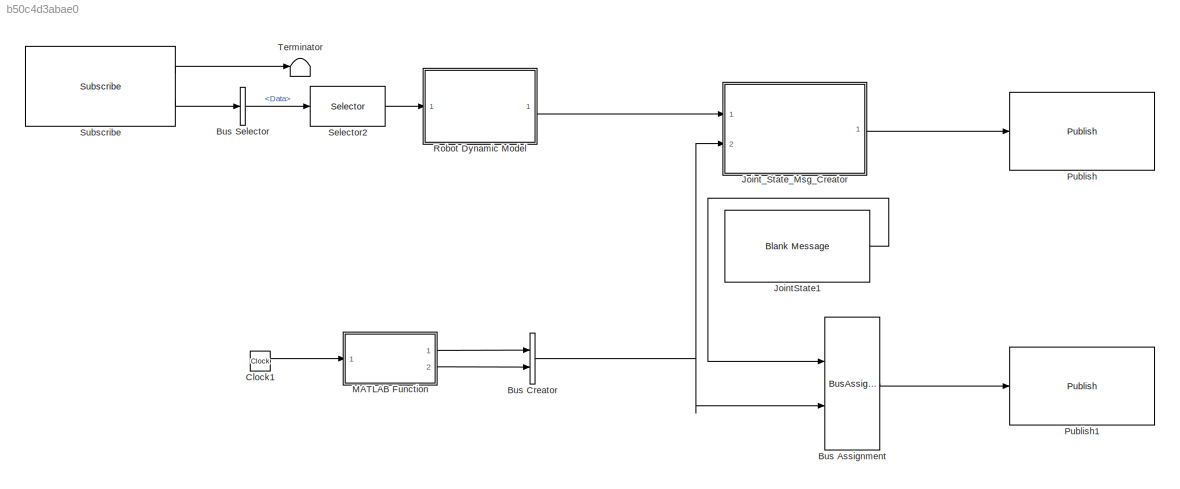
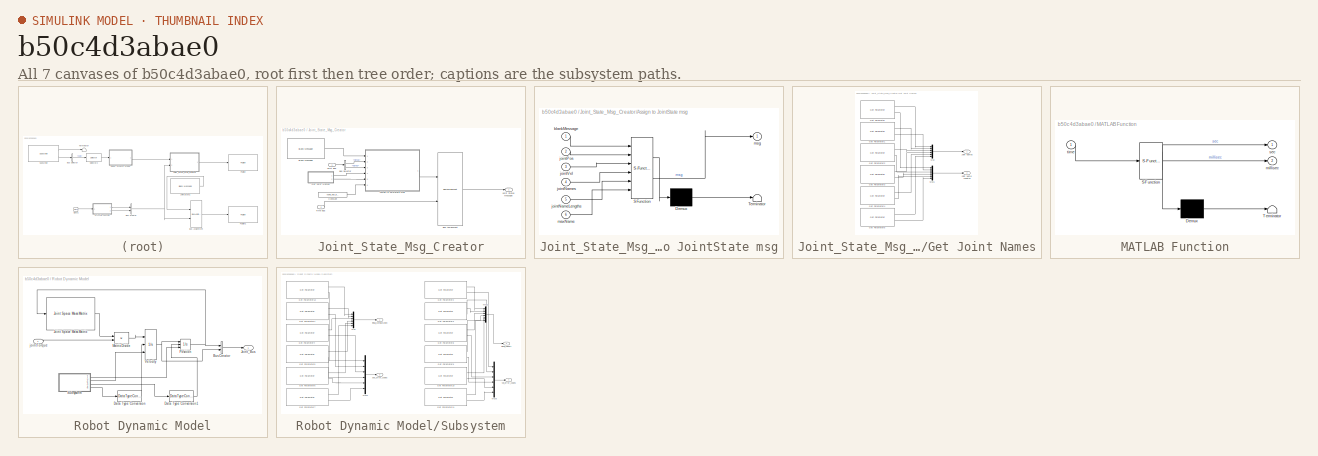
[diagram: thumbnail index - all 7 canvases of the model, root first then tree order]
MODEL slx_b50c4d3abae0
KIND model
CONFIG AbsTol = auto
CONFIG EnableMultiTasking = off
CONFIG FixedStep = 0.01
CONFIG MaxStep = auto
CONFIG MinStep = auto
CONFIG RelTol = 1e-3
CONFIG SampleTimeConstraint = Unconstrained
CONFIG Solver = ode3
CONFIG SolverName = ode3
CONFIG StartTime = 0.0
CONFIG StopTime = inf
BLOCK [BusAssignment] Bus Assignment
  AssignedSignals = Clock_
  Ports = [2, 1]
BLOCK [BusCreator] Bus Creator
  DisplayOption = bar
  InheritFromInputs = on
  Inputs = 2
  Ports = [2, 1]
BLOCK [BusSelector] Bus Selector
  OutputSignals = Data
  Ports = [1, 1]
BLOCK [Clock] Clock1
BLOCK [Reference] JointState1  REF=robotlib/Blank Message
  Ports = [0, 1]
  SourceBlock = robotlib/Blank Message
  SourceProductBaseCode = RR
  SourceType = ROS Blank Message
BLOCK [SubSystem] Joint_State_Msg_Creator
  Ports = [2, 1]
  RequestExecContextInheritance = off
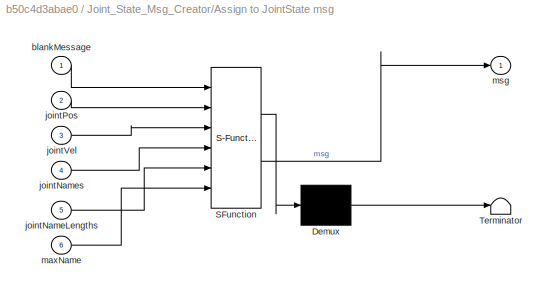
BLOCK [SubSystem] Joint_State_Msg_Creator/Assign to JointState msg
  ErrorFcn = Stateflow.Translate.translate
  PermitHierarchicalResolution = ExplicitOnly
  Ports = [6, 1]
  RequestExecContextInheritance = off
  SFBlockType = MATLAB Function
  TreatAsAtomicUnit = on
BLOCK [Demux] Joint_State_Msg_Creator/Assign to JointState msg/ Demux 
  Outputs = 1
  Ports = [1, 1]
BLOCK [S-Function] Joint_State_Msg_Creator/Assign to JointState msg/ SFunction 
  EnableBusSupport = on
  FunctionName = sf_sfun
  PortCounts = [6 2]
  Ports = [6, 2]
  SFcnIsStateOwnerBlock = off
  SFunctionDeploymentMode = off
  Tag = Stateflow S-Function 2
BLOCK [Terminator] Joint_State_Msg_Creator/Assign to JointState msg/ Terminator 
BLOCK [Inport] Joint_State_Msg_Creator/Assign to JointState msg/blankMessage
BLOCK [Inport] Joint_State_Msg_Creator/Assign to JointState msg/jointNameLengths
  Port = 5
BLOCK [Inport] Joint_State_Msg_Creator/Assign to JointState msg/jointNames
  Port = 4
BLOCK [Inport] Joint_State_Msg_Creator/Assign to JointState msg/jointPos
  Port = 2
BLOCK [Inport] Joint_State_Msg_Creator/Assign to JointState msg/jointVel
  Port = 3
BLOCK [Inport] Joint_State_Msg_Creator/Assign to JointState msg/maxName
  Port = 6
BLOCK [Outport] Joint_State_Msg_Creator/Assign to JointState msg/msg
  VectorParamsAs1DForOutWhenUnconnected = off
BLOCK [Reference] Joint_State_Msg_Creator/Blank Message  REF=robotlib/Blank Message
  Ports = [0, 1]
  SourceBlock = robotlib/Blank Message
  SourceProductBaseCode = RR
  SourceType = ROS Blank Message
BLOCK [BusAssignment] Joint_State_Msg_Creator/Bus Assignment
  AssignedSignals = Header.Stamp
  Ports = [2, 1]
BLOCK [BusSelector] Joint_State_Msg_Creator/Bus Selector
  OutputSignals = signal1,signal2
  Ports = [1, 2]
BLOCK [Constant] Joint_State_Msg_Creator/Constant
  Value = name_max_length
BLOCK [SubSystem] Joint_State_Msg_Creator/Get Joint Names
  Ports = [0, 2]
  RequestExecContextInheritance = off
BLOCK [Reference] Joint_State_Msg_Creator/Get Joint Names/Get Parameter  REF=robotlib/Get Parameter
  Ports = [0, 2]
  SourceBlock = robotlib/Get Parameter
  SourceProductBaseCode = RR
  SourceType = ROS Get Parameter
BLOCK [Reference] Joint_State_Msg_Creator/Get Joint Names/Get Parameter1  REF=robotlib/Get Parameter
  Ports = [0, 2]
  SourceBlock = robotlib/Get Parameter
  SourceProductBaseCode = RR
  SourceType = ROS Get Parameter
BLOCK [Reference] Joint_State_Msg_Creator/Get Joint Names/Get Parameter2  REF=robotlib/Get Parameter
  Ports = [0, 2]
  SourceBlock = robotlib/Get Parameter
  SourceProductBaseCode = RR
  SourceType = ROS Get Parameter
BLOCK [Reference] Joint_State_Msg_Creator/Get Joint Names/Get Parameter3  REF=robotlib/Get Parameter
  Ports = [0, 2]
  SourceBlock = robotlib/Get Parameter
  SourceProductBaseCode = RR
  SourceType = ROS Get Parameter
BLOCK [Reference] Joint_State_Msg_Creator/Get Joint Names/Get Parameter4  REF=robotlib/Get Parameter
  Ports = [0, 2]
  SourceBlock = robotlib/Get Parameter
  SourceProductBaseCode = RR
  SourceType = ROS Get Parameter
BLOCK [Reference] Joint_State_Msg_Creator/Get Joint Names/Get Parameter5  REF=robotlib/Get Parameter
  Ports = [0, 2]
  SourceBlock = robotlib/Get Parameter
  SourceProductBaseCode = RR
  SourceType = ROS Get Parameter
BLOCK [Outport] Joint_State_Msg_Creator/Get Joint Names/Joint Name Lengths
  Port = 2
BLOCK [Outport] Joint_State_Msg_Creator/Get Joint Names/Joint Names
BLOCK [Mux] Joint_State_Msg_Creator/Get Joint Names/Mux
  DisplayOption = bar
  Inputs = 6
  Ports = [6, 1]
BLOCK [Mux] Joint_State_Msg_Creator/Get Joint Names/Mux1
  DisplayOption = bar
  Inputs = 6
  Ports = [6, 1]
BLOCK [Inport] Joint_State_Msg_Creator/Joint Bus
BLOCK [Outport] Joint_State_Msg_Creator/Joint States Message
BLOCK [Inport] Joint_State_Msg_Creator/Time Bus
  Port = 2
BLOCK [SubSystem] MATLAB Function
  ErrorFcn = Stateflow.Translate.translate
  PermitHierarchicalResolution = ExplicitOnly
  Ports = [1, 2]
  RequestExecContextInheritance = off
  SFBlockType = MATLAB Function
  TreatAsAtomicUnit = on
BLOCK [Demux] MATLAB Function/ Demux 
  Outputs = 1
  Ports = [1, 1]
BLOCK [S-Function] MATLAB Function/ SFunction 
  EnableBusSupport = on
  FunctionName = sf_sfun
  PortCounts = [1 3]
  Ports = [1, 3]
  SFcnIsStateOwnerBlock = off
  SFunctionDeploymentMode = off
  Tag = Stateflow S-Function 1
BLOCK [Terminator] MATLAB Function/ Terminator 
BLOCK [Outport] MATLAB Function/millisec
  Port = 2
BLOCK [Outport] MATLAB Function/sec
BLOCK [Inport] MATLAB Function/time
BLOCK [Reference] Publish  REF=robotlib/Publish
  Ports = [1]
  SourceBlock = robotlib/Publish
  SourceProductBaseCode = RR
  SourceType = ROS Publish
BLOCK [Reference] Publish1  REF=robotlib/Publish
  Ports = [1]
  SourceBlock = robotlib/Publish
  SourceProductBaseCode = RR
  SourceType = ROS Publish
BLOCK [SubSystem] Robot Dynamic Model
  Ports = [1, 1]
  RequestExecContextInheritance = off
BLOCK [BusCreator] Robot Dynamic Model/Bus Creator
  DisplayOption = bar
  InheritFromInputs = on
  Inputs = 2
  Ports = [2, 1]
BLOCK [DataTypeConversion] Robot Dynamic Model/Data Type Conversion
  OutDataTypeStr = double
  RndMeth = Floor
  SaturateOnIntegerOverflow = off
BLOCK [DataTypeConversion] Robot Dynamic Model/Data Type Conversion1
  OutDataTypeStr = double
  RndMeth = Floor
  SaturateOnIntegerOverflow = off
BLOCK [Reference] Robot Dynamic Model/Joint Space Mass Matrix  REF=robotmaniplib/Joint Space Mass Matrix
  Ports = [1, 1]
  SourceBlock = robotmaniplib/Joint Space Mass Matrix
  SourceProductBaseCode = RO
  SourceType = Joint Space Mass Matrix
BLOCK [Outport] Robot Dynamic Model/Joint_Bus
BLOCK [Product] Robot Dynamic Model/Matrix Divide
  Inputs = /*
  Multiplication = Matrix(*)
  Ports = [2, 1]
BLOCK [Integrator] Robot Dynamic Model/Position
  ExternalReset = falling
  InitialConditionSource = external
  Ports = [3, 1]
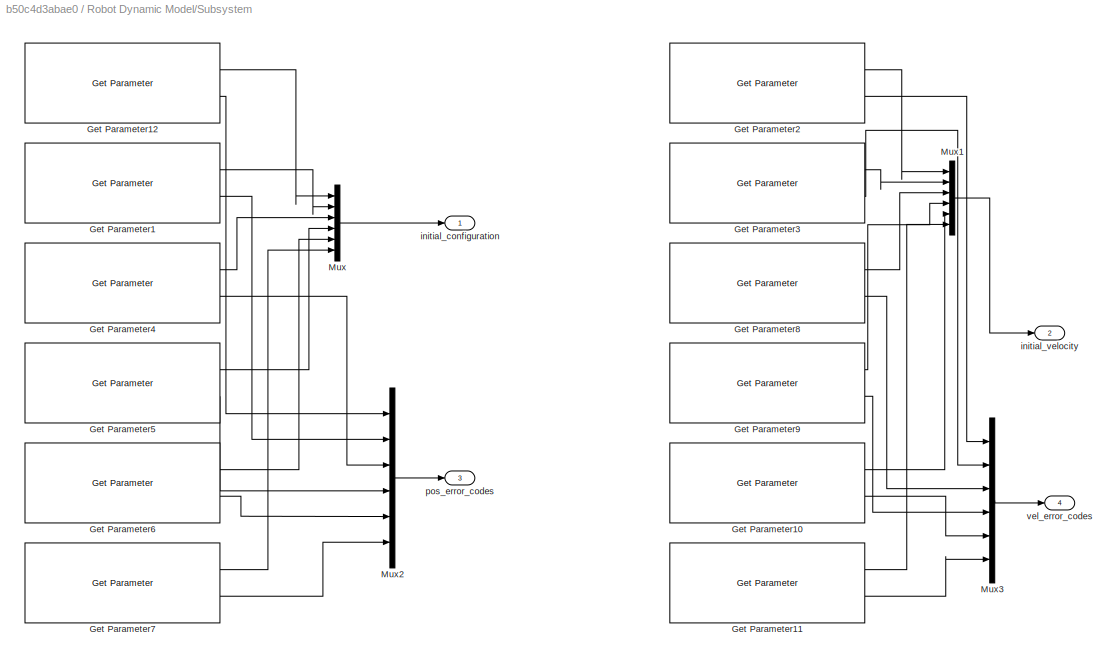
BLOCK [SubSystem] Robot Dynamic Model/Subsystem
  Ports = [0, 4]
  RequestExecContextInheritance = off
BLOCK [Reference] Robot Dynamic Model/Subsystem/Get Parameter1  REF=robotlib/Get Parameter
  Ports = [0, 2]
  SourceBlock = robotlib/Get Parameter
  SourceProductBaseCode = RR
  SourceType = ROS Get Parameter
BLOCK [Reference] Robot Dynamic Model/Subsystem/Get Parameter10  REF=robotlib/Get Parameter
  Ports = [0, 2]
  SourceBlock = robotlib/Get Parameter
  SourceProductBaseCode = RR
  SourceType = ROS Get Parameter
BLOCK [Reference] Robot Dynamic Model/Subsystem/Get Parameter11  REF=robotlib/Get Parameter
  Ports = [0, 2]
  SourceBlock = robotlib/Get Parameter
  SourceProductBaseCode = RR
  SourceType = ROS Get Parameter
BLOCK [Reference] Robot Dynamic Model/Subsystem/Get Parameter12  REF=robotlib/Get Parameter
  Ports = [0, 2]
  SourceBlock = robotlib/Get Parameter
  SourceProductBaseCode = RR
  SourceType = ROS Get Parameter
BLOCK [Reference] Robot Dynamic Model/Subsystem/Get Parameter2  REF=robotlib/Get Parameter
  Ports = [0, 2]
  SourceBlock = robotlib/Get Parameter
  SourceProductBaseCode = RR
  SourceType = ROS Get Parameter
BLOCK [Reference] Robot Dynamic Model/Subsystem/Get Parameter3  REF=robotlib/Get Parameter
  Ports = [0, 2]
  SourceBlock = robotlib/Get Parameter
  SourceProductBaseCode = RR
  SourceType = ROS Get Parameter
BLOCK [Reference] Robot Dynamic Model/Subsystem/Get Parameter4  REF=robotlib/Get Parameter
  Ports = [0, 2]
  SourceBlock = robotlib/Get Parameter
  SourceProductBaseCode = RR
  SourceType = ROS Get Parameter
BLOCK [Reference] Robot Dynamic Model/Subsystem/Get Parameter5  REF=robotlib/Get Parameter
  Ports = [0, 2]
  SourceBlock = robotlib/Get Parameter
  SourceProductBaseCode = RR
  SourceType = ROS Get Parameter
BLOCK [Reference] Robot Dynamic Model/Subsystem/Get Parameter6  REF=robotlib/Get Parameter
  Ports = [0, 2]
  SourceBlock = robotlib/Get Parameter
  SourceProductBaseCode = RR
  SourceType = ROS Get Parameter
BLOCK [Reference] Robot Dynamic Model/Subsystem/Get Parameter7  REF=robotlib/Get Parameter
  Ports = [0, 2]
  SourceBlock = robotlib/Get Parameter
  SourceProductBaseCode = RR
  SourceType = ROS Get Parameter
BLOCK [Reference] Robot Dynamic Model/Subsystem/Get Parameter8  REF=robotlib/Get Parameter
  Ports = [0, 2]
  SourceBlock = robotlib/Get Parameter
  SourceProductBaseCode = RR
  SourceType = ROS Get Parameter
BLOCK [Reference] Robot Dynamic Model/Subsystem/Get Parameter9  REF=robotlib/Get Parameter
  Ports = [0, 2]
  SourceBlock = robotlib/Get Parameter
  SourceProductBaseCode = RR
  SourceType = ROS Get Parameter
BLOCK [Mux] Robot Dynamic Model/Subsystem/Mux
  DisplayOption = bar
  Inputs = 6
  Ports = [6, 1]
BLOCK [Mux] Robot Dynamic Model/Subsystem/Mux1
  DisplayOption = bar
  Inputs = 6
  Ports = [6, 1]
BLOCK [Mux] Robot Dynamic Model/Subsystem/Mux2
  DisplayOption = bar
  Inputs = 6
  Ports = [6, 1]
BLOCK [Mux] Robot Dynamic Model/Subsystem/Mux3
  DisplayOption = bar
  Inputs = 6
  Ports = [6, 1]
BLOCK [Outport] Robot Dynamic Model/Subsystem/initial_configuration
BLOCK [Outport] Robot Dynamic Model/Subsystem/initial_velocity
  Port = 2
BLOCK [Outport] Robot Dynamic Model/Subsystem/pos_error_codes
  Port = 3
BLOCK [Outport] Robot Dynamic Model/Subsystem/vel_error_codes
  Port = 4
BLOCK [Integrator] Robot Dynamic Model/Velocity
  ExternalReset = falling
  InitialConditionSource = external
  Ports = [3, 1]
BLOCK [Inport] Robot Dynamic Model/jointTorque
BLOCK [Selector] Selector2
  IndexOptions = Starting index (dialog)
  Indices = 1
  OutputSizes = 6
  Ports = [1, 1]
BLOCK [Reference] Subscribe  REF=robotlib/Subscribe
  Ports = [0, 2]
  SourceBlock = robotlib/Subscribe
  SourceProductBaseCode = RR
  SourceType = ROS Subscribe
BLOCK [Terminator] Terminator
LINE Bus Assignment:1 -> Publish1:1
NET Bus Creator:1 -> Bus Assignment:2, Joint_State_Msg_Creator:2
LINE Bus Selector:1 -> Selector2:1
LINE Clock1:1 -> MATLAB Function:1
LINE JointState1:1 -> Bus Assignment:1
LINE Joint_State_Msg_Creator/Assign to JointState msg:1 -> Joint_State_Msg_Creator/Bus Assignment:1
LINE Joint_State_Msg_Creator/Blank Message:1 -> Joint_State_Msg_Creator/Assign to JointState msg:1
LINE Joint_State_Msg_Creator/Bus Assignment:1 -> Joint_State_Msg_Creator/Joint States Message:1
LINE Joint_State_Msg_Creator/Bus Selector:1 -> Joint_State_Msg_Creator/Assign to JointState msg:2
LINE Joint_State_Msg_Creator/Bus Selector:2 -> Joint_State_Msg_Creator/Assign to JointState msg:3
LINE Joint_State_Msg_Creator/Constant:1 -> Joint_State_Msg_Creator/Assign to JointState msg:6
LINE Joint_State_Msg_Creator/Get Joint Names/Get Parameter1:1 -> Joint_State_Msg_Creator/Get Joint Names/Mux:2
LINE Joint_State_Msg_Creator/Get Joint Names/Get Parameter1:2 -> Joint_State_Msg_Creator/Get Joint Names/Mux1:2
LINE Joint_State_Msg_Creator/Get Joint Names/Get Parameter2:1 -> Joint_State_Msg_Creator/Get Joint Names/Mux:3
LINE Joint_State_Msg_Creator/Get Joint Names/Get Parameter2:2 -> Joint_State_Msg_Creator/Get Joint Names/Mux1:3
LINE Joint_State_Msg_Creator/Get Joint Names/Get Parameter3:1 -> Joint_State_Msg_Creator/Get Joint Names/Mux:4
LINE Joint_State_Msg_Creator/Get Joint Names/Get Parameter3:2 -> Joint_State_Msg_Creator/Get Joint Names/Mux1:4
LINE Joint_State_Msg_Creator/Get Joint Names/Get Parameter4:1 -> Joint_State_Msg_Creator/Get Joint Names/Mux:5
LINE Joint_State_Msg_Creator/Get Joint Names/Get Parameter4:2 -> Joint_State_Msg_Creator/Get Joint Names/Mux1:5
LINE Joint_State_Msg_Creator/Get Joint Names/Get Parameter5:1 -> Joint_State_Msg_Creator/Get Joint Names/Mux:6
LINE Joint_State_Msg_Creator/Get Joint Names/Get Parameter5:2 -> Joint_State_Msg_Creator/Get Joint Names/Mux1:6
LINE Joint_State_Msg_Creator/Get Joint Names/Get Parameter:1 -> Joint_State_Msg_Creator/Get Joint Names/Mux:1
LINE Joint_State_Msg_Creator/Get Joint Names/Get Parameter:2 -> Joint_State_Msg_Creator/Get Joint Names/Mux1:1
LINE Joint_State_Msg_Creator/Get Joint Names/Mux1:1 -> Joint_State_Msg_Creator/Get Joint Names/Joint Name Lengths:1
LINE Joint_State_Msg_Creator/Get Joint Names/Mux:1 -> Joint_State_Msg_Creator/Get Joint Names/Joint Names:1
LINE Joint_State_Msg_Creator/Get Joint Names:1 -> Joint_State_Msg_Creator/Assign to JointState msg:4
LINE Joint_State_Msg_Creator/Get Joint Names:2 -> Joint_State_Msg_Creator/Assign to JointState msg:5
LINE Joint_State_Msg_Creator/Joint Bus:1 -> Joint_State_Msg_Creator/Bus Selector:1
LINE Joint_State_Msg_Creator/Time Bus:1 -> Joint_State_Msg_Creator/Bus Assignment:2
LINE Joint_State_Msg_Creator:1 -> Publish:1
LINE MATLAB Function:1 -> Bus Creator:1
LINE MATLAB Function:2 -> Bus Creator:2
LINE Robot Dynamic Model/Bus Creator:1 -> Robot Dynamic Model/Joint_Bus:1
LINE Robot Dynamic Model/Data Type Conversion1:1 -> Robot Dynamic Model/Position:2
LINE Robot Dynamic Model/Data Type Conversion:1 -> Robot Dynamic Model/Velocity:2
LINE Robot Dynamic Model/Joint Space Mass Matrix:1 -> Robot Dynamic Model/Matrix Divide:1
LINE Robot Dynamic Model/Matrix Divide:1 -> Robot Dynamic Model/Velocity:1
NET Robot Dynamic Model/Position:1 -> Robot Dynamic Model/Bus Creator:1, Robot Dynamic Model/Joint Space Mass Matrix:1
LINE Robot Dynamic Model/Subsystem/Get Parameter10:1 -> Robot Dynamic Model/Subsystem/Mux1:5
LINE Robot Dynamic Model/Subsystem/Get Parameter10:2 -> Robot Dynamic Model/Subsystem/Mux3:5
LINE Robot Dynamic Model/Subsystem/Get Parameter11:1 -> Robot Dynamic Model/Subsystem/Mux1:6
LINE Robot Dynamic Model/Subsystem/Get Parameter11:2 -> Robot Dynamic Model/Subsystem/Mux3:6
LINE Robot Dynamic Model/Subsystem/Get Parameter12:1 -> Robot Dynamic Model/Subsystem/Mux:1
LINE Robot Dynamic Model/Subsystem/Get Parameter12:2 -> Robot Dynamic Model/Subsystem/Mux2:1
LINE Robot Dynamic Model/Subsystem/Get Parameter1:1 -> Robot Dynamic Model/Subsystem/Mux:2
LINE Robot Dynamic Model/Subsystem/Get Parameter1:2 -> Robot Dynamic Model/Subsystem/Mux2:2
LINE Robot Dynamic Model/Subsystem/Get Parameter2:1 -> Robot Dynamic Model/Subsystem/Mux1:1
LINE Robot Dynamic Model/Subsystem/Get Parameter2:2 -> Robot Dynamic Model/Subsystem/Mux3:1
LINE Robot Dynamic Model/Subsystem/Get Parameter3:1 -> Robot Dynamic Model/Subsystem/Mux1:2
LINE Robot Dynamic Model/Subsystem/Get Parameter3:2 -> Robot Dynamic Model/Subsystem/Mux3:2
LINE Robot Dynamic Model/Subsystem/Get Parameter4:1 -> Robot Dynamic Model/Subsystem/Mux:3
LINE Robot Dynamic Model/Subsystem/Get Parameter4:2 -> Robot Dynamic Model/Subsystem/Mux2:3
LINE Robot Dynamic Model/Subsystem/Get Parameter5:1 -> Robot Dynamic Model/Subsystem/Mux:4
LINE Robot Dynamic Model/Subsystem/Get Parameter5:2 -> Robot Dynamic Model/Subsystem/Mux2:4
LINE Robot Dynamic Model/Subsystem/Get Parameter6:1 -> Robot Dynamic Model/Subsystem/Mux:5
LINE Robot Dynamic Model/Subsystem/Get Parameter6:2 -> Robot Dynamic Model/Subsystem/Mux2:5
LINE Robot Dynamic Model/Subsystem/Get Parameter7:1 -> Robot Dynamic Model/Subsystem/Mux:6
LINE Robot Dynamic Model/Subsystem/Get Parameter7:2 -> Robot Dynamic Model/Subsystem/Mux2:6
LINE Robot Dynamic Model/Subsystem/Get Parameter8:1 -> Robot Dynamic Model/Subsystem/Mux1:3
LINE Robot Dynamic Model/Subsystem/Get Parameter8:2 -> Robot Dynamic Model/Subsystem/Mux3:3
LINE Robot Dynamic Model/Subsystem/Get Parameter9:1 -> Robot Dynamic Model/Subsystem/Mux1:4
LINE Robot Dynamic Model/Subsystem/Get Parameter9:2 -> Robot Dynamic Model/Subsystem/Mux3:4
LINE Robot Dynamic Model/Subsystem/Mux1:1 -> Robot Dynamic Model/Subsystem/initial_velocity:1
LINE Robot Dynamic Model/Subsystem/Mux2:1 -> Robot Dynamic Model/Subsystem/pos_error_codes:1
LINE Robot Dynamic Model/Subsystem/Mux3:1 -> Robot Dynamic Model/Subsystem/vel_error_codes:1
LINE Robot Dynamic Model/Subsystem/Mux:1 -> Robot Dynamic Model/Subsystem/initial_configuration:1
LINE Robot Dynamic Model/Subsystem:1 -> Robot Dynamic Model/Position:3
LINE Robot Dynamic Model/Subsystem:2 -> Robot Dynamic Model/Velocity:3
LINE Robot Dynamic Model/Subsystem:3 -> Robot Dynamic Model/Data Type Conversion1:1
LINE Robot Dynamic Model/Subsystem:4 -> Robot Dynamic Model/Data Type Conversion:1
NET Robot Dynamic Model/Velocity:1 -> Robot Dynamic Model/Bus Creator:2, Robot Dynamic Model/Position:1
LINE Robot Dynamic Model/jointTorque:1 -> Robot Dynamic Model/Matrix Divide:2
LINE Robot Dynamic Model:1 -> Joint_State_Msg_Creator:1
LINE Selector2:1 -> Robot Dynamic Model:1
LINE Subscribe:1 -> Terminator:1
LINE Subscribe:2 -> Bus Selector:1
note: NET lines group one-source signal fan-out (src -> all destinations, sorted); 1:1 wires keep LINE
CHART MATLAB Function states=1 transitions=1
  STATE_LABEL 'eML_blk_kernel()'
  STATE_LABEL 'SCRIPT:\nfunction [sec, millisec] = fcn(time)\n\n    sec = fix(time);\n    millisec = fix((time - fix(time)) * 1e9);\n'
CHART Joint_State_Msg_Creator/Assign to JointState msg states=1 transitions=1
  STATE_LABEL 'eML_blk_kernel()'
  STATE_LABEL 'SCRIPT:\nfunction msg = assign_JointState(blankMessage, jointPos, jointVel, jointNames, jointNameLengths, maxName)\n%#codegen\n\n% Assign the output message to be the same with input blank message\nmsg = blankMessage;\n\n% Initialize time stamp\n\n\n% Set the number of strings in the string array, and joint positions/velocities in the position/velocity array\nnumJoints = length(jointPos);\nmsg.Name_SL_Info.Cu...<+537ch>'
CHART  states=0 transitions=0
CHART  states=0 transitions=0
